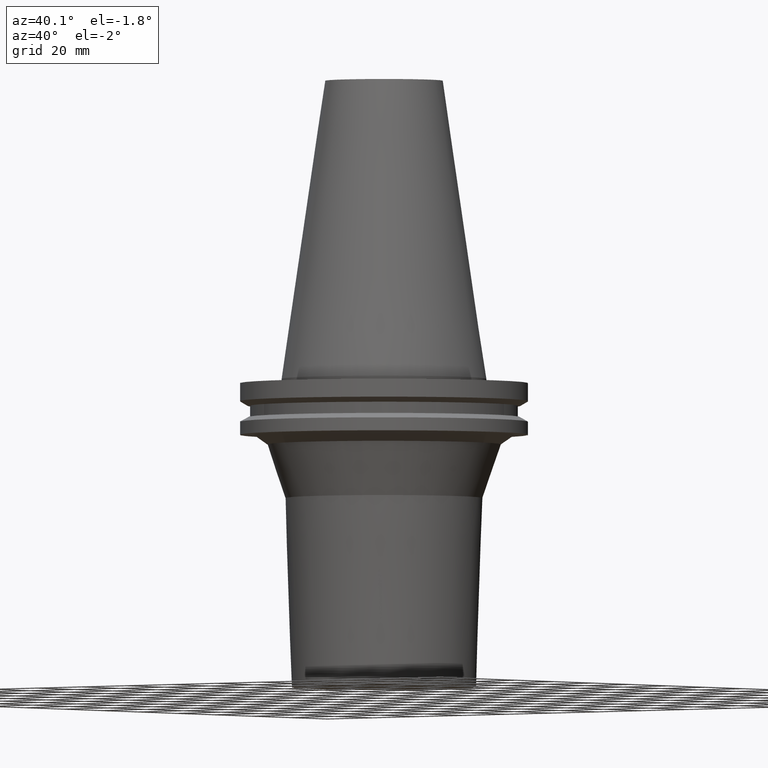
[diagram: clean part render]
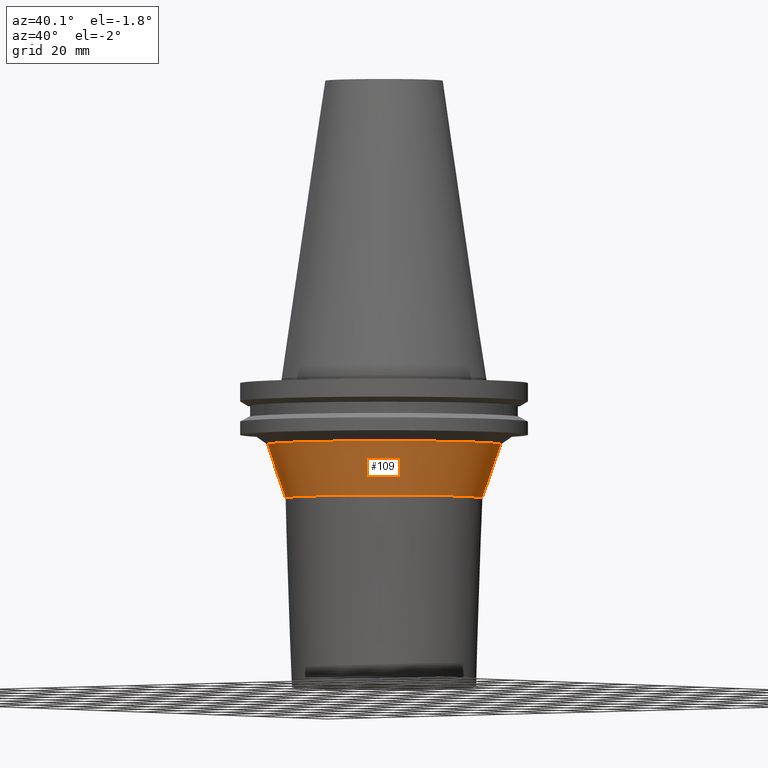
[diagram: same view with one face highlighted and labeled with its STEP entity id]
A machine part, auxiliary view. The second image highlights one B-rep face of the part: STEP entity #109.
In plain terms, the highlighted conical surface has half-angle 18.535 deg.
Its self-contained STEP definition (entity closure, byte-faithful):
#61=EDGE_CURVE('Unnamed[1]',#160,#160,#161,.T.);
#109=ADVANCED_FACE('Unnamed[1]',(#234,#235),#236,.T.);
#123=EDGE_CURVE('Unnamed[1]',#257,#257,#258,.T.);
#160=VERTEX_POINT('',#295);
#161=CIRCLE('',#296,33.6671528776939);
#234=FACE_BOUND('',#386,.T.);
#235=FACE_BOUND('',#387,.T.);
#236=CONICAL_SURFACE('',#388,36.7348637324063,0.323496413372039);
#257=VERTEX_POINT('',#415);
#258=CIRCLE('',#416,39.8025745871186);
#295=CARTESIAN_POINT('',(2.4884582069141E-015,33.6671528776939,-40.6396065975375));
#296=AXIS2_PLACEMENT_3D('',#450,#451,#452);
#386=EDGE_LOOP('',(#532));
#387=EDGE_LOOP('',(#533));
#388=AXIS2_PLACEMENT_3D('',#534,#535,#536);
#415=CARTESIAN_POINT('',(1.36792430753272E-015,39.8025745871186,-22.3398992833709));
#416=AXIS2_PLACEMENT_3D('',#558,#559,#560);
#450=CARTESIAN_POINT('',(2.4884582069141E-015,-1.31951674248599E-014,-40.6396065975375));
#451=DIRECTION('',(6.12323399573676E-017,-1.22384385729735E-016,-1.0));
#452=DIRECTION('',(2.66672958170495E-033,1.0,-1.22384385729735E-016));
#532=ORIENTED_EDGE('',*,*,#61,.F.);
#533=ORIENTED_EDGE('',*,*,#123,.T.);
#534=CARTESIAN_POINT('',(1.92819125722341E-015,-1.20753682055208E-014,-31.4897529404542));
#535=DIRECTION('',(-6.12323399573677E-017,1.2238438572973E-016,1.0));
#536=DIRECTION('',(2.66672958170683E-033,1.0,-1.2238438572973E-016));
#558=CARTESIAN_POINT('',(1.36792430753272E-015,-1.09555689861817E-014,-22.3398992833709));
#559=DIRECTION('',(6.12323399573677E-017,-1.22384385729767E-016,-1.0));
#560=DIRECTION('',(2.66672958171066E-033,1.0,-1.22384385729767E-016));